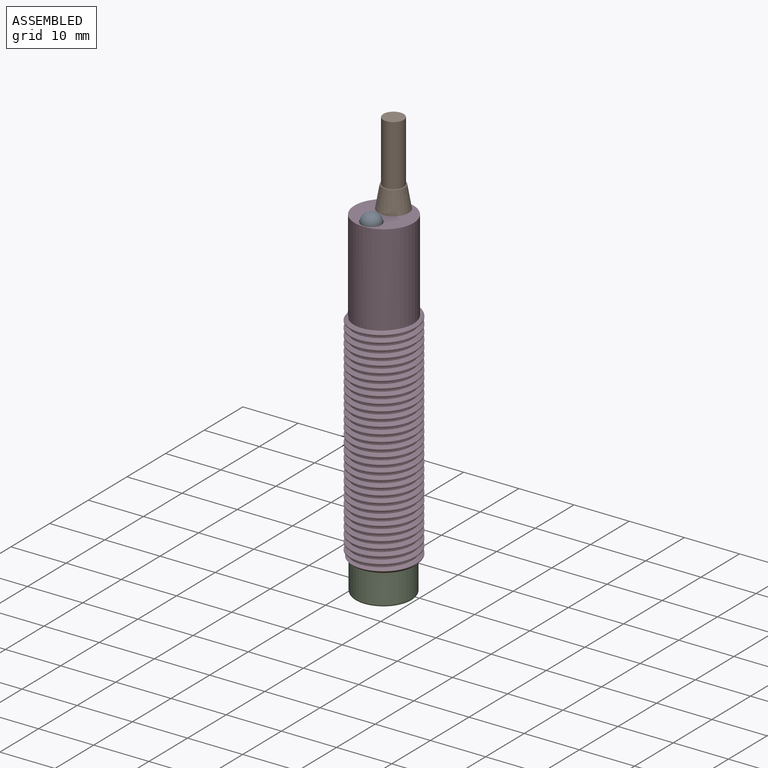
[diagram: assembled view]
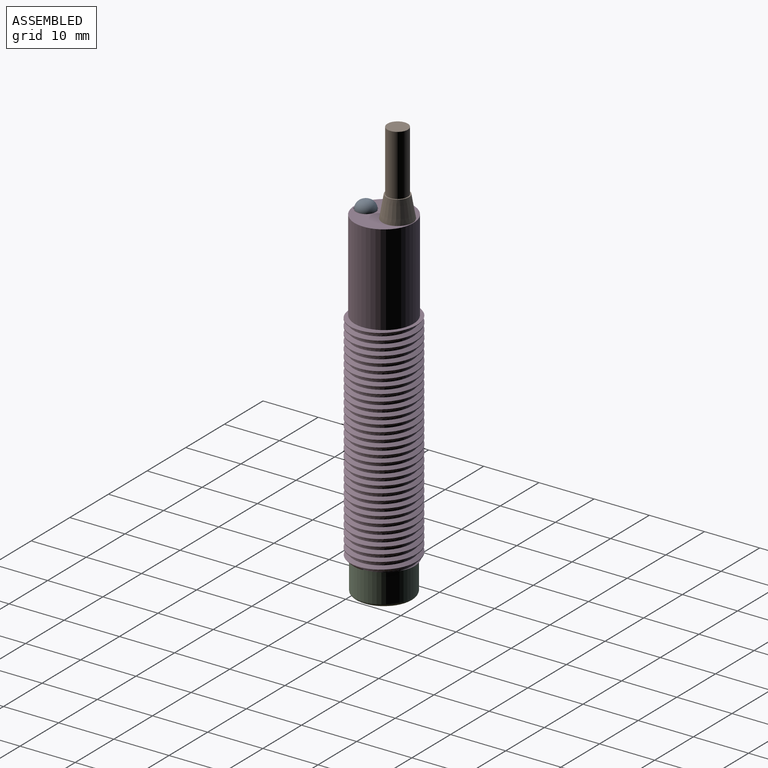
[diagram: assembled view, second angle]
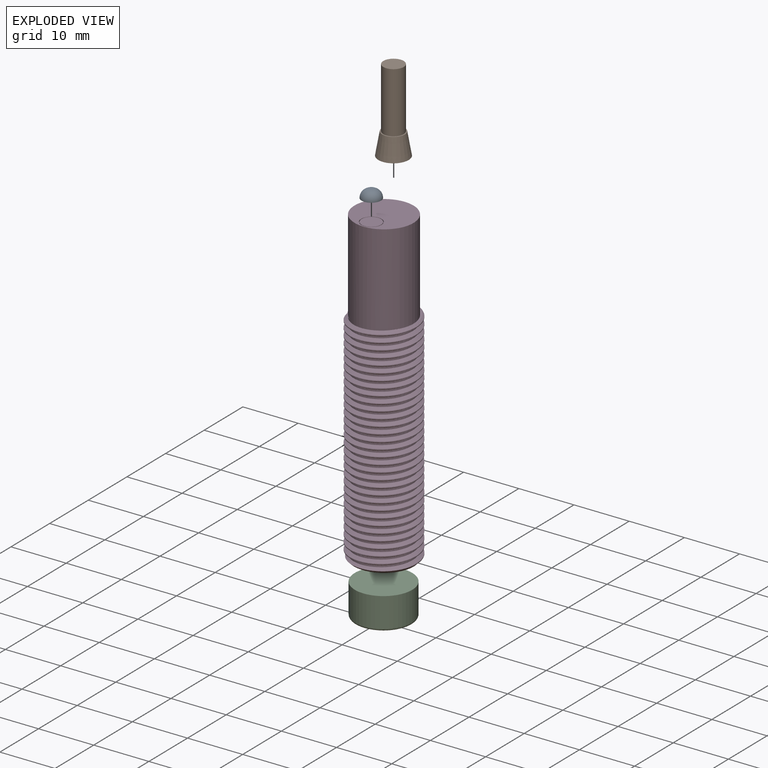
[diagram: exploded view]
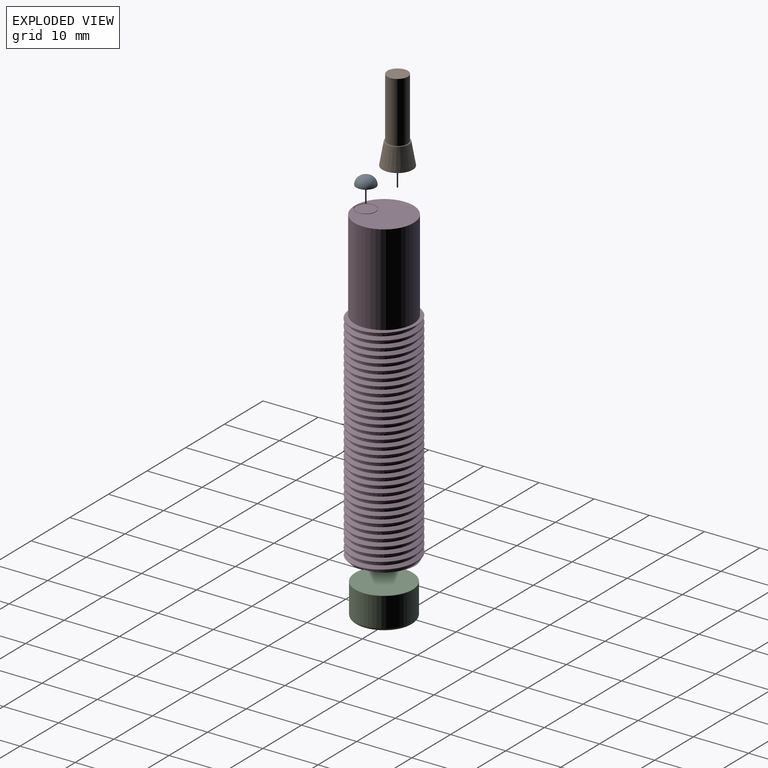
[diagram: exploded view, second angle]
ASSEMBLY  parts=4 mates=3
PART A: 3 faces, bbox 3.5x3.5x1.5 mm
  f0: plane 0.5x0.5mm, normal (0,0,1), area 0.2mm2, adj f2
  f1: plane 3.5x3.5mm, normal (0,0,-1), area 9.6mm2, adj f2
  f2: torus R=0.25mm, axis (0,0,1), area 17.8mm2, adj f0,f1
PART B: 5 faces, bbox 5.5x5.5x15 mm
  f0: plane 4.1x4.1mm, normal (0,0,1), area 2.5mm2, adj f2,f4
  f1: plane 5.5x5.5mm, normal (0,0,-1), area 23.8mm2, adj f4
  f2: cylinder r=1.85mm len=11mm, axis (0,0,-1), area 127.9mm2, adj f0,f3
  f3: plane 3.7x3.7mm, normal (0,0,1), area 10.8mm2, adj f2
  f4: cone r=2.05mm half-angle=9.9deg, axis (0,0,-1), area 61.2mm2, adj f0,f1
PART C: 4 faces, bbox 11.3x11.3x5.8 mm
  f0: cylinder r=5.2mm len=10.4mm, axis (0,0,-1), area 173.2mm2, adj f1,f3
  f1: plane 10.4x10.4mm, normal (0,0,1), area 84.9mm2, adj f0
  f2: plane 9.4x9.4mm, normal (0,0,-1), area 69.4mm2, adj f3
  f3: torus R=4.7mm, axis (0,0,1), area 24.8mm2, adj f0,f2
PART D: 16 faces, bbox 12.8x14.2x57.1 mm
  f0: cylinder r=6mm len=39.18mm, axis (0,0,-1), area 358.7mm2, adj f1,f2,f6,f7
  f1: plane 11.54x10.51mm, normal (0,0,1), area 9.7mm2, adj f0,f6,f7,f8
  f2: cone r=6mm half-angle=45deg, axis (0,0,1), area 11.1mm2, adj f0,f3,f5,f6
  f3: plane 11.08x11.08mm, normal (0,0,-1), area 93.8mm2, adj f2,f4,f5,f6
  f4: cylinder r=5.32mm len=56.18mm, axis (0,0,-1), area 506.9mm2, adj f3,f5,f6,f7,f9,f10,f11
  f5: plane 0.68x0.5mm, normal (0,1,0), area 0.1mm2, adj f2,f3,f4,f7
  f6: bspline ~40.81x13.83mm, area 877.7mm2, adj f0,f1,f2,f3,f4,f10
  f7: bspline ~40.18x13.83mm, area 879.8mm2, adj f0,f1,f4,f5,f9
  f8: cylinder r=5.35mm len=16.5mm, axis (0,0,-1), area 401.3mm2, adj f1,f9,f10,f11
  f9: extruded ~16.5x0.35mm, area 6.9mm2, adj f4,f7,f8,f11
  f10: extruded ~16.5x0.32mm, area 6.5mm2, adj f4,f6,f8,f11
  f11: plane 10.7x10.67mm, normal (0,0,1), area 78.9mm2, adj f4,f8,f9,f10,f13
  f12: cylinder r=1.75mm len=3.5mm, axis (0,0,1), area 2.2mm2, adj f14,f15
  f13: cylinder r=1.85mm len=3.7mm, axis (0,0,1), area 2.3mm2, adj f11,f14
  f14: plane 3.7x3.7mm, normal (0,0,1), area 1.1mm2, adj f12,f13
  f15: plane 3.5x3.5mm, normal (0,0,1), area 9.6mm2, adj f12
PLACE A t=(7.34,26.09,-5.71)mm
PLACE B t=(7.33,26.1,-5.71)mm
PLACE C t=(7.28,26.05,-5.71)mm
PLACE D t=(7.34,26.09,-5.71)mm
MATE fastened B.f2 <-> D.f11  axis (0,0,-1) through (7.33,28.55,56.27)mm
MATE fastened A.f2 <-> D.f12  axis (0,0,-1) through (7.34,22.8,56.27)mm
MATE fastened C.f0 <-> D.f3  axis (0,0,1) through (7.28,26.05,0.09)mm
